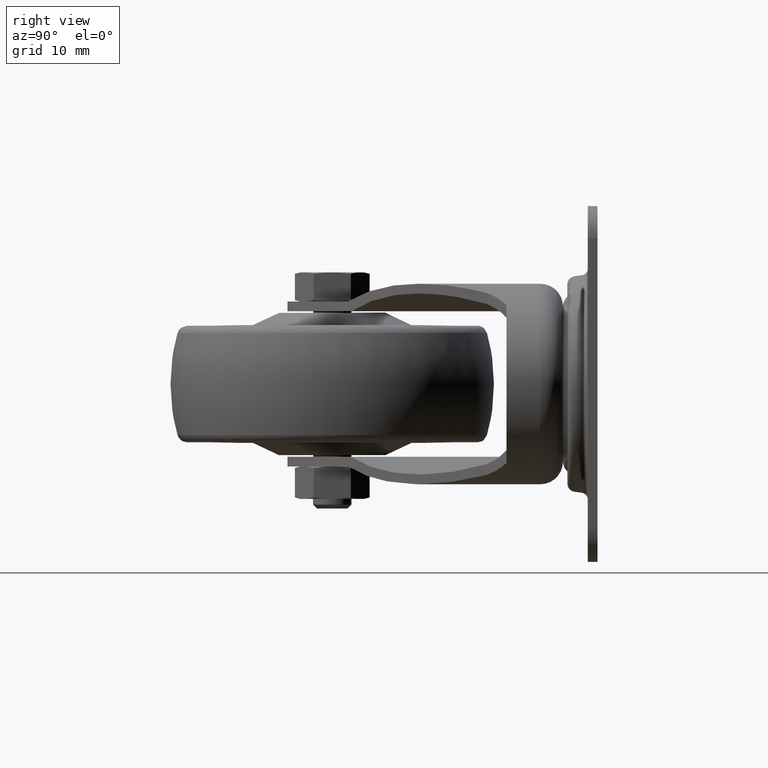
[diagram: clean part render]
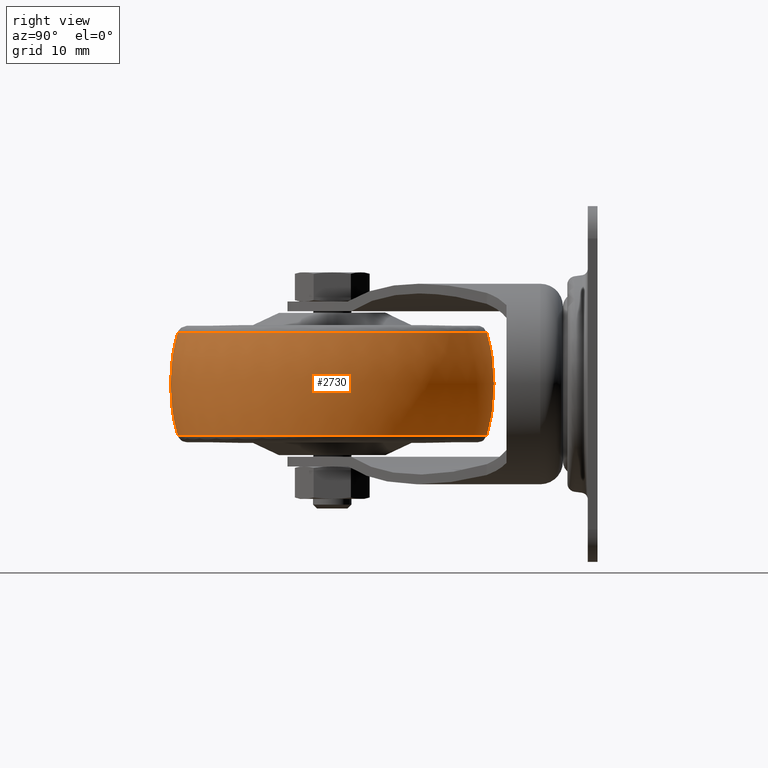
[diagram: same view with one face highlighted and labeled with its STEP entity id]
A machine part, right view. The second image highlights one B-rep face of the part: STEP entity #2730.
In plain terms, the highlighted face is a freeform B-spline surface patch.
Its self-contained STEP definition (entity closure, byte-faithful):
#59=(
BOUNDED_SURFACE()
B_SPLINE_SURFACE(2,2,((#4666,#4667,#4668,#4669,#4670,#4671,#4672,#4673,
#4674),(#4675,#4676,#4677,#4678,#4679,#4680,#4681,#4682,#4683),(#4684,#4685,
#4686,#4687,#4688,#4689,#4690,#4691,#4692)),.UNSPECIFIED.,.F.,.T.,.F.)
B_SPLINE_SURFACE_WITH_KNOTS((3,3),(3,2,2,2,3),(-0.266294017118183,0.26629401340118),
(-3.14159265358979,-1.5707963267949,0.,1.5707963267949,3.14159265358979),
 .UNSPECIFIED.)
GEOMETRIC_REPRESENTATION_ITEM()
RATIONAL_B_SPLINE_SURFACE(((1.,0.707106781186548,1.,0.707106781186548,1.,
0.707106781186548,1.,0.707106781186548,1.),(0.964752778374519,0.682183231757185,
0.964752778374519,0.682183231757185,0.964752778374519,0.682183231757185,
0.964752778374519,0.682183231757185,0.964752778374519),(1.,0.707106781186548,
1.,0.707106781186548,1.,0.707106781186548,1.,0.707106781186548,1.)))
REPRESENTATION_ITEM('')
SURFACE()
);
#593=FACE_OUTER_BOUND('',#785,.T.);
#785=EDGE_LOOP('',(#2046,#2047,#2048,#2049));
#991=CIRCLE('',#3166,23.942583365908);
#992=CIRCLE('',#3167,30.);
#993=CIRCLE('',#3168,23.9425833365632);
#1247=VERTEX_POINT('',#4663);
#1248=VERTEX_POINT('',#4693);
#1537=EDGE_CURVE('',#1247,#1247,#991,.T.);
#1538=EDGE_CURVE('',#1247,#1248,#992,.T.);
#1539=EDGE_CURVE('',#1248,#1248,#993,.T.);
#2046=ORIENTED_EDGE('',*,*,#1537,.F.);
#2047=ORIENTED_EDGE('',*,*,#1538,.T.);
#2048=ORIENTED_EDGE('',*,*,#1539,.T.);
#2049=ORIENTED_EDGE('',*,*,#1538,.F.);
#2730=ADVANCED_FACE('',(#593),#59,.F.);
#3166=AXIS2_PLACEMENT_3D('',#4665,#3715,#3716);
#3167=AXIS2_PLACEMENT_3D('',#4694,#3717,#3718);
#3168=AXIS2_PLACEMENT_3D('',#4695,#3719,#3720);
#3715=DIRECTION('center_axis',(1.,0.,0.));
#3716=DIRECTION('ref_axis',(0.,0.,-1.));
#3717=DIRECTION('center_axis',(0.,-1.,-1.22464679914735E-16));
#3718=DIRECTION('ref_axis',(0.,-1.22464679914735E-16,1.));
#3719=DIRECTION('center_axis',(1.,0.,0.));
#3720=DIRECTION('ref_axis',(0.,0.,-1.));
#4663=CARTESIAN_POINT('',(18.3947367345256,-2.93212080823779E-15,23.942583365908));
#4665=CARTESIAN_POINT('Origin',(18.3947367345256,0.,0.));
#4666=CARTESIAN_POINT('Ctrl Pts',(2.60526315789472,0.,23.9425833365632));
#4667=CARTESIAN_POINT('Ctrl Pts',(2.60526315789472,-23.9425833365632,23.9425833365632));
#4668=CARTESIAN_POINT('Ctrl Pts',(2.60526315789472,-23.9425833365632,0.));
#4669=CARTESIAN_POINT('Ctrl Pts',(2.60526315789472,-23.9425833365632,-23.9425833365632));
#4670=CARTESIAN_POINT('Ctrl Pts',(2.60526315789472,0.,-23.9425833365632));
#4671=CARTESIAN_POINT('Ctrl Pts',(2.60526315789472,23.9425833365632,-23.9425833365632));
#4672=CARTESIAN_POINT('Ctrl Pts',(2.60526315789472,23.9425833365632,0.));
#4673=CARTESIAN_POINT('Ctrl Pts',(2.60526315789472,23.9425833365632,23.9425833365632));
#4674=CARTESIAN_POINT('Ctrl Pts',(2.60526315789472,0.,23.9425833365632));
#4675=CARTESIAN_POINT('Ctrl Pts',(10.4999999422079,0.,26.0960493428649));
#4676=CARTESIAN_POINT('Ctrl Pts',(10.4999999422079,-26.0960493428649,26.0960493428649));
#4677=CARTESIAN_POINT('Ctrl Pts',(10.4999999422079,-26.0960493428649,0.));
#4678=CARTESIAN_POINT('Ctrl Pts',(10.4999999422079,-26.0960493428649,-26.0960493428649));
#4679=CARTESIAN_POINT('Ctrl Pts',(10.4999999422079,0.,-26.0960493428649));
#4680=CARTESIAN_POINT('Ctrl Pts',(10.4999999422079,26.0960493428649,-26.0960493428649));
#4681=CARTESIAN_POINT('Ctrl Pts',(10.4999999422079,26.0960493428649,0.));
#4682=CARTESIAN_POINT('Ctrl Pts',(10.4999999422079,26.0960493428649,26.0960493428649));
#4683=CARTESIAN_POINT('Ctrl Pts',(10.4999999422079,0.,26.0960493428649));
#4684=CARTESIAN_POINT('Ctrl Pts',(18.3947367345256,0.,23.942583365908));
#4685=CARTESIAN_POINT('Ctrl Pts',(18.3947367345256,-23.942583365908,23.942583365908));
#4686=CARTESIAN_POINT('Ctrl Pts',(18.3947367345256,-23.942583365908,0.));
#4687=CARTESIAN_POINT('Ctrl Pts',(18.3947367345256,-23.942583365908,-23.942583365908));
#4688=CARTESIAN_POINT('Ctrl Pts',(18.3947367345256,0.,-23.942583365908));
#4689=CARTESIAN_POINT('Ctrl Pts',(18.3947367345256,23.942583365908,-23.942583365908));
#4690=CARTESIAN_POINT('Ctrl Pts',(18.3947367345256,23.942583365908,0.));
#4691=CARTESIAN_POINT('Ctrl Pts',(18.3947367345256,23.942583365908,23.942583365908));
#4692=CARTESIAN_POINT('Ctrl Pts',(18.3947367345256,0.,23.942583365908));
#4693=CARTESIAN_POINT('',(2.60526315789473,-2.93212080464409E-15,23.9425833365632));
#4694=CARTESIAN_POINT('Origin',(10.5,6.12323399573672E-16,-4.99999999999996));
#4695=CARTESIAN_POINT('Origin',(2.60526315789473,0.,0.));